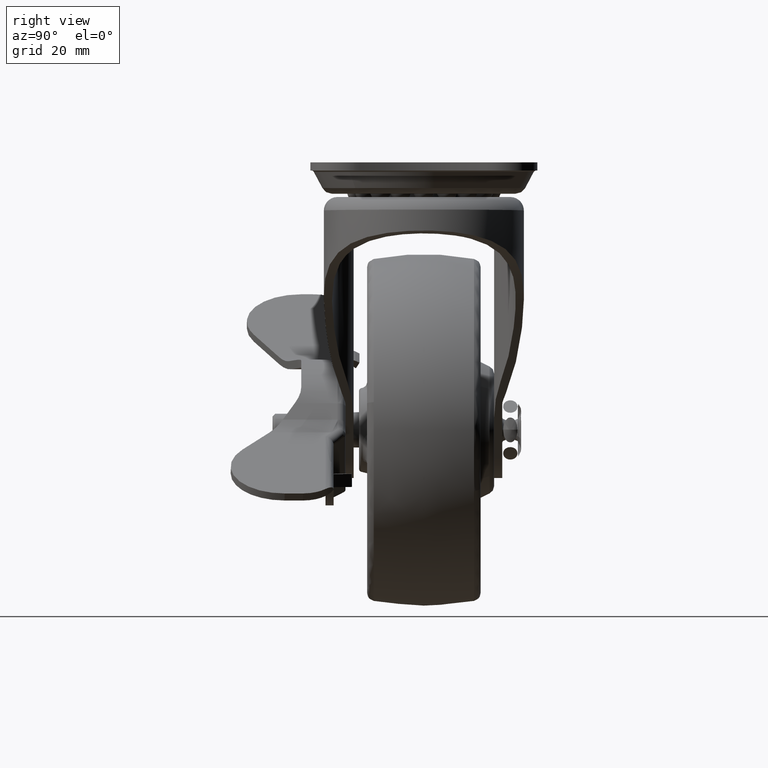
[diagram: clean part render]
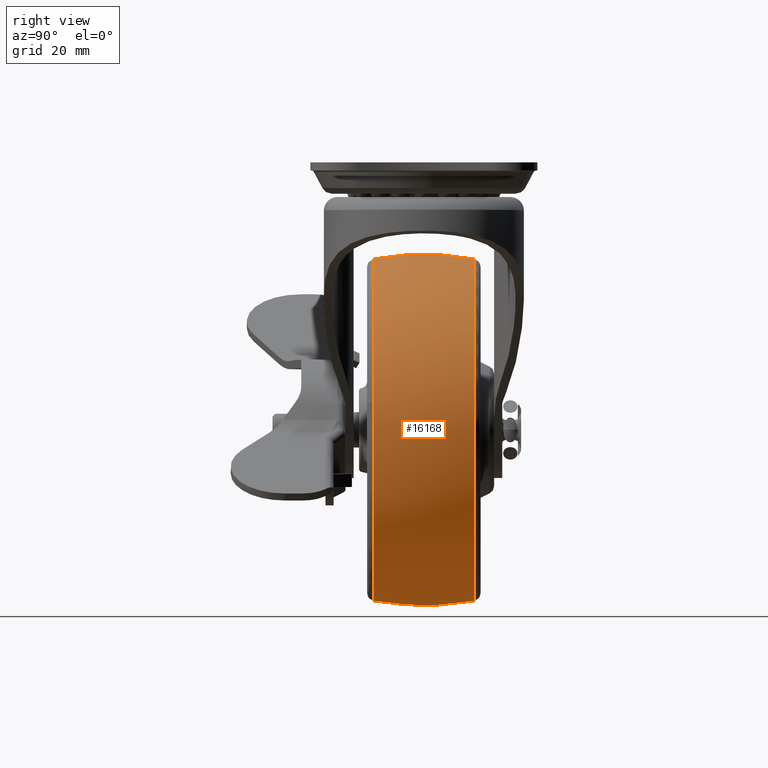
[diagram: same view with one face highlighted and labeled with its STEP entity id]
A machine part, right view. The second image highlights one B-rep face of the part: STEP entity #16168.
In plain terms, the highlighted face is a freeform B-spline surface patch.
Its self-contained STEP definition (entity closure, byte-faithful):
#14970=CARTESIAN_POINT('',(-24.0,9.278340652740681,-16.368413542973521));
#14971=VERTEX_POINT('',#14970);
#14988=CARTESIAN_POINT('',(5.559855383711903,9.278347413735352,-59.259296685674798));
#14989=VERTEX_POINT('',#14988);
#14990=CARTESIAN_POINT('',(5.559855383711903,9.278347413735352,-59.259296685674798));
#14991=CARTESIAN_POINT('',(6.183984268976650,9.278347152950920,-57.621077383336967));
#14992=CARTESIAN_POINT('',(6.937191551333012,9.278346737467379,-55.008845439949383));
#14993=CARTESIAN_POINT('',(7.530198971849602,9.278346123743855,-51.145477850854128));
#14994=CARTESIAN_POINT('',(7.722941006927616,9.278345516493785,-47.319250255242380));
#14995=CARTESIAN_POINT('',(7.380619714493645,9.278344885286099,-43.337096531868518));
#14996=CARTESIAN_POINT('',(6.483145951248871,9.278344243923007,-39.285838940578493));
#14997=CARTESIAN_POINT('',(5.327572688205906,9.278343719265529,-35.967907405329449));
#14998=CARTESIAN_POINT('',(3.736217373753648,9.278343196978169,-32.660925411302557));
#14999=CARTESIAN_POINT('',(1.960635834191641,9.278342748377956,-29.816762018267710));
#15000=CARTESIAN_POINT('',(-0.311658788984143,9.278342294518703,-26.934902095813470));
#15001=CARTESIAN_POINT('',(-3.403364936806913,9.278341804207621,-23.815744752513790));
#15002=CARTESIAN_POINT('',(-7.474805999964736,9.278341338166870,-20.840608815567439));
#15003=CARTESIAN_POINT('',(-12.065354742953200,9.278340986580746,-18.582219505581499));
#15004=CARTESIAN_POINT('',(-15.716566664052250,9.278340806451171,-17.413264217576039));
#15005=CARTESIAN_POINT('',(-19.617370299083010,9.278340681633308,-16.590698857785821));
#15006=CARTESIAN_POINT('',(-22.167225664484530,9.278340650046397,-16.368220482917589));
#15007=CARTESIAN_POINT('',(-24.0,9.278340652740681,-16.368413542973521));
#15008=B_SPLINE_CURVE_WITH_KNOTS('',3,(#14990,#14991,#14992,#14993,#14994,#14995,#14996,#14997,#14998,#14999,#15000,#15001,#15002,#15003,#15004,#15005,#15006,#15007),.UNSPECIFIED.,.F.,.U.,(4,1,1,1,1,1,1,1,1,1,1,1,1,1,1,4),(0.000000037547650,5.259231602539714,8.127915266473821,11.713801862943960,16.734012516397950,20.080830018472462,24.144804131813071,27.252555490345959,31.077416629998162,34.185178002967319,38.249126144130017,44.225585464509109,49.245808553685499,53.548857363973127,55.700373544264757,61.198655662885351),.UNSPECIFIED.);
#15009=EDGE_CURVE('',#14989,#14971,#15008,.T.);
#15064=CARTESIAN_POINT('',(-24.0,9.278350515463879,-79.631576594482993));
#15065=VERTEX_POINT('',#15064);
#15066=CARTESIAN_POINT('',(-24.0,9.278350515463879,-79.631576594482993));
#15067=CARTESIAN_POINT('',(-21.912295343940009,9.278350515502742,-79.631831697351146));
#15068=CARTESIAN_POINT('',(-18.134638776503881,9.278350458313680,-79.256212088935641));
#15069=CARTESIAN_POINT('',(-13.435536545179829,9.278350254007941,-77.914322815592627));
#15070=CARTESIAN_POINT('',(-9.327392544354604,9.278349982046249,-76.128069175274078));
#15071=CARTESIAN_POINT('',(-6.038271073671546,9.278349680407874,-74.146892429600513));
#15072=CARTESIAN_POINT('',(-2.844089639001925,9.278349293683062,-71.606871786207137));
#15073=CARTESIAN_POINT('',(-0.060401256230462,9.278348870269403,-68.825870808510814));
#15074=CARTESIAN_POINT('',(3.042882183010831,9.278348247656412,-64.736525425715911));
#15075=CARTESIAN_POINT('',(4.764022702409149,9.278347732017675,-61.349787258131009));
#15076=CARTESIAN_POINT('',(5.559855383711903,9.278347413735352,-59.259296685674798));
#15077=B_SPLINE_CURVE_WITH_KNOTS('',3,(#15066,#15067,#15068,#15069,#15070,#15071,#15072,#15073,#15074,#15075,#15076),.UNSPECIFIED.,.F.,.U.,(4,1,1,1,1,1,1,1,4),(0.000000037920429,6.263082940332545,11.333231368878391,14.613898063488580,19.683988487469549,22.815553875409801,26.841838259049869,31.464619026012731,38.175068268067399),.UNSPECIFIED.);
#15078=EDGE_CURVE('',#15065,#14989,#15077,.T.);
#15080=CARTESIAN_POINT('',(-55.420019626395813,9.278361322975613,-44.347718838754588));
#15081=VERTEX_POINT('',#15080);
#15082=CARTESIAN_POINT('',(-55.420019626395813,9.278361322975613,-44.347718838754588));
#15083=CARTESIAN_POINT('',(-55.556374417708092,9.278361143338932,-45.520668236157633));
#15084=CARTESIAN_POINT('',(-55.718365933421779,9.278360705286421,-48.229117056861767));
#15085=CARTESIAN_POINT('',(-55.445703088067262,9.278359987237682,-52.189503537649443));
#15086=CARTESIAN_POINT('',(-54.669572567834848,9.278359216804553,-56.008194058270050));
#15087=CARTESIAN_POINT('',(-53.643076906214738,9.278358517884055,-59.185328328797240));
#15088=CARTESIAN_POINT('',(-52.253006001702808,9.278357761994089,-62.372178702982467));
#15089=CARTESIAN_POINT('',(-50.235319099543730,9.278356857597434,-65.869445671355521));
#15090=CARTESIAN_POINT('',(-47.817547856986650,9.278355966568032,-68.932192633326196));
#15091=CARTESIAN_POINT('',(-45.159268437370102,9.278355109371212,-71.582725850238560));
#15092=CARTESIAN_POINT('',(-42.034289381100884,9.278354197651099,-74.136825297769548));
#15093=CARTESIAN_POINT('',(-38.010268606837613,9.278353179359320,-76.514165603536412));
#15094=CARTESIAN_POINT('',(-33.988800548137711,9.278352299402201,-78.084019374325464));
#15095=CARTESIAN_POINT('',(-29.487374168292920,9.278351409848030,-79.282651148846142));
#15096=CARTESIAN_POINT('',(-26.292305027115511,9.278350864106489,-79.632033399468000));
#15097=CARTESIAN_POINT('',(-24.0,9.278350515463879,-79.631576594482993));
#15098=B_SPLINE_CURVE_WITH_KNOTS('',3,(#15082,#15083,#15084,#15085,#15086,#15087,#15088,#15089,#15090,#15091,#15092,#15093,#15094,#15095,#15096,#15097),.UNSPECIFIED.,.F.,.U.,(4,1,1,1,1,1,1,1,1,1,1,1,1,4),(0.000000064286269,3.542555920557852,8.127105867624820,11.878105732831971,15.212321470516709,18.129757470669482,22.297509757813980,27.298765042080021,29.799459891124670,33.550430018594213,39.385315327132162,43.761480131550023,46.470531097739368,53.347307388171103),.UNSPECIFIED.);
#15099=EDGE_CURVE('',#15081,#15065,#15098,.T.);
#15147=CARTESIAN_POINT('',(-15.286248543549259,-9.278350259359307,-78.407682962569965));
#15148=VERTEX_POINT('',#15147);
#15149=CARTESIAN_POINT('',(7.210436807232209,-9.278342663000696,-42.855525262711772));
#15150=VERTEX_POINT('',#15149);
#15151=CARTESIAN_POINT('',(-15.286248543549259,-9.278350259359307,-78.407682962569965));
#15152=CARTESIAN_POINT('',(-13.212145726120511,-9.278350124064389,-77.813645428503520));
#15153=CARTESIAN_POINT('',(-9.633746539261882,-9.278349804167887,-76.378054177124170));
#15154=CARTESIAN_POINT('',(-5.363906308284211,-9.278349215354719,-73.681434656019988));
#15155=CARTESIAN_POINT('',(-2.103387843958191,-9.278348621400991,-70.936777812796976));
#15156=CARTESIAN_POINT('',(0.922541501103569,-9.278347921127860,-67.681670900068170));
#15157=CARTESIAN_POINT('',(3.385842205674261,-9.278347143426011,-64.045651038255542));
#15158=CARTESIAN_POINT('',(5.173103065267068,-9.278346362101601,-60.376603906260513));
#15159=CARTESIAN_POINT('',(6.463058435204409,-9.278345607522438,-56.822944797151273));
#15160=CARTESIAN_POINT('',(7.447316692009709,-9.278344689585751,-52.486267677486651));
#15161=CARTESIAN_POINT('',(7.758743582469232,-9.278343664349203,-47.624233384181657));
#15162=CARTESIAN_POINT('',(7.454166974950971,-9.278342973054127,-44.333814165011979));
#15163=CARTESIAN_POINT('',(7.210436807232209,-9.278342663000696,-42.855525262711772));
#15164=B_SPLINE_CURVE_WITH_KNOTS('',3,(#15151,#15152,#15153,#15154,#15155,#15156,#15157,#15158,#15159,#15160,#15161,#15162,#15163),.UNSPECIFIED.,.F.,.U.,(4,1,1,1,1,1,1,1,1,1,4),(0.000000057327533,6.472438272265066,11.506588663306690,15.102409535707309,19.237609982699290,24.811067068705711,28.227087928343519,31.463323137257650,36.137885071215742,41.531609012054993,46.026351884907157),.UNSPECIFIED.);
#15165=EDGE_CURVE('',#15148,#15150,#15164,.T.);
#15245=CARTESIAN_POINT('',(-24.0,-9.278350515463870,-79.631576594482993));
#15246=VERTEX_POINT('',#15245);
#15247=CARTESIAN_POINT('',(-24.0,-9.278350515463870,-79.631576594482993));
#15248=CARTESIAN_POINT('',(-22.574654805078541,-9.278350515477310,-79.631640872826580));
#15249=CARTESIAN_POINT('',(-19.632040725731802,-9.278350473767178,-79.432312787175263));
#15250=CARTESIAN_POINT('',(-16.744815052908489,-9.278350346840645,-78.825746188329603));
#15251=CARTESIAN_POINT('',(-15.286248543549259,-9.278350259359307,-78.407682962569965));
#15252=B_SPLINE_CURVE_WITH_KNOTS('',3,(#15247,#15248,#15249,#15250,#15251),.UNSPECIFIED.,.F.,.U.,(4,1,4),(1.821412E-009,4.276028438289386,8.827911730198334),.UNSPECIFIED.);
#15253=EDGE_CURVE('',#15246,#15148,#15252,.T.);
#15324=CARTESIAN_POINT('',(-24.0,-9.278336809609019,-16.368412817215621));
#15325=VERTEX_POINT('',#15324);
#15326=CARTESIAN_POINT('',(7.210436807232209,-9.278342663000696,-42.855525262711772));
#15327=CARTESIAN_POINT('',(6.861910390094805,-9.278342195312769,-40.739196373304942));
#15328=CARTESIAN_POINT('',(5.808150234676088,-9.278341337884871,-36.859259616660552));
#15329=CARTESIAN_POINT('',(3.558861996990044,-9.278340321215554,-32.258741254125503));
#15330=CARTESIAN_POINT('',(1.086242183659753,-9.278339513819526,-28.605203646990510));
#15331=CARTESIAN_POINT('',(-1.392412018963790,-9.278338884072545,-25.755542727847249));
#15332=CARTESIAN_POINT('',(-4.165433059003477,-9.278338337375089,-23.281688613359361));
#15333=CARTESIAN_POINT('',(-7.185852167365854,-9.278337859581963,-21.119633053457449));
#15334=CARTESIAN_POINT('',(-10.596593510965700,-9.278337444818829,-19.242792415165852));
#15335=CARTESIAN_POINT('',(-14.715600863005490,-9.278337093480770,-17.652957852330591));
#15336=CARTESIAN_POINT('',(-19.188696043081951,-9.278336863955406,-16.614334795984561));
#15337=CARTESIAN_POINT('',(-22.376902785934359,-9.278336809587561,-16.368315770221919));
#15338=CARTESIAN_POINT('',(-24.0,-9.278336809609019,-16.368412817215621));
#15339=B_SPLINE_CURVE_WITH_KNOTS('',3,(#15326,#15327,#15328,#15329,#15330,#15331,#15332,#15333,#15334,#15335,#15336,#15337,#15338),.UNSPECIFIED.,.F.,.U.,(4,1,1,1,1,1,1,1,1,1,4),(0.000000054252858,6.434439187999054,11.999371716958359,15.303564224370520,19.651149577808461,23.303124565666501,26.433387062265460,30.780986147595030,34.954692756653301,39.650122840017502,44.519405091545842),.UNSPECIFIED.);
#15340=EDGE_CURVE('',#15150,#15325,#15339,.T.);
#15342=CARTESIAN_POINT('',(-55.420022977033028,-9.278343487341120,-44.347718492499752));
#15343=VERTEX_POINT('',#15342);
#15360=CARTESIAN_POINT('',(-55.420022977033028,-9.278343487341120,-44.347718492499752));
#15361=CARTESIAN_POINT('',(-55.620639850386397,-9.278343659122536,-46.072644889177077));
#15362=CARTESIAN_POINT('',(-55.741458960682472,-9.278344049585263,-49.694956921320127));
#15363=CARTESIAN_POINT('',(-55.118343499933530,-9.278344610025920,-54.184844919942691));
#15364=CARTESIAN_POINT('',(-54.043836027022238,-9.278345148119191,-58.071613195246677));
#15365=CARTESIAN_POINT('',(-52.906316078953019,-9.278345584753941,-60.988997585380147));
#15366=CARTESIAN_POINT('',(-51.309402488732161,-9.278346085834480,-64.077399280637906));
#15367=CARTESIAN_POINT('',(-49.012472716341733,-9.278346700391131,-67.563889474702279));
#15368=CARTESIAN_POINT('',(-45.928020731416353,-9.278347385255362,-70.981964776784380));
#15369=CARTESIAN_POINT('',(-42.513785529080138,-9.278348028815765,-73.734578534715439));
#15370=CARTESIAN_POINT('',(-39.397212373970838,-9.278348555782232,-75.702743213422650));
#15371=CARTESIAN_POINT('',(-36.271294313530227,-9.278349034735696,-77.230404416161207));
#15372=CARTESIAN_POINT('',(-32.466170495925532,-9.278349560365140,-78.573384107038734));
#15373=CARTESIAN_POINT('',(-28.376136311898051,-9.278350060653640,-79.434553341746380));
#15374=CARTESIAN_POINT('',(-25.389246609171941,-9.278350378032846,-79.631613873960404));
#15375=CARTESIAN_POINT('',(-24.0,-9.278350515463870,-79.631576594482993));
#15376=B_SPLINE_CURVE_WITH_KNOTS('',3,(#15360,#15361,#15362,#15363,#15364,#15365,#15366,#15367,#15368,#15369,#15370,#15371,#15372,#15373,#15374,#15375),.UNSPECIFIED.,.F.,.U.,(4,1,1,1,1,1,1,1,1,1,1,1,1,4),(0.000000064387720,5.209663291490699,10.836162291902580,13.545216551171560,17.296202413204011,20.213631684816971,23.964655805305860,29.799461106420580,33.967221152428017,37.093038454207473,40.844037450372177,44.386638797339813,49.179559699622182,53.347309563721808),.UNSPECIFIED.);
#15377=EDGE_CURVE('',#15343,#15246,#15376,.T.);
#16088=CARTESIAN_POINT('',(-55.234897611642538,-10.215966914522928,-44.369199315051986));
#16089=CARTESIAN_POINT('',(-56.282628353075218,-5.162436085833464,-44.247409343142685));
#16090=CARTESIAN_POINT('',(-56.282628353075218,0.0,-44.247409343142699));
#16091=CARTESIAN_POINT('',(-56.282628353075218,5.162441517534351,-44.247409343142678));
#16092=CARTESIAN_POINT('',(-55.234895430139346,10.215977436584838,-44.369199568633562));
#16093=CARTESIAN_POINT('',(-55.445214474975728,-10.215966914522928,-46.178506269486320));
#16094=CARTESIAN_POINT('',(-56.499999999999993,-5.162436085833465,-46.117406956480998));
#16095=CARTESIAN_POINT('',(-56.499999999999993,0.0,-46.117406956480998));
#16096=CARTESIAN_POINT('',(-56.500000000000007,5.162441517534350,-46.117406956480998));
#16097=CARTESIAN_POINT('',(-55.445212278783607,10.215977436584838,-46.178506396702559));
#16098=CARTESIAN_POINT('',(-55.445214474975714,-10.215966914522927,-47.999996000000010));
#16099=CARTESIAN_POINT('',(-56.500000000000000,-5.162436085833466,-47.999996000000003));
#16100=CARTESIAN_POINT('',(-56.500000000000000,0.0,-47.999996000000003));
#16101=CARTESIAN_POINT('',(-56.500000000000014,5.162441517534351,-47.999996000000010));
#16102=CARTESIAN_POINT('',(-55.445212278783600,10.215977436584842,-47.999996000000010));
#16103=CARTESIAN_POINT('',(-55.445214474975714,-10.215966914522927,-79.445210474975738));
#16104=CARTESIAN_POINT('',(-56.499999999999993,-5.162436085833465,-80.499995999999982));
#16105=CARTESIAN_POINT('',(-56.500000000000000,0.0,-80.499996000000010));
#16106=CARTESIAN_POINT('',(-56.500000000000000,5.162441517534351,-80.499996000000010));
#16107=CARTESIAN_POINT('',(-55.445212278783615,10.215977436584842,-79.445208278783610));
#16108=CARTESIAN_POINT('',(-23.999999999999996,-10.215966914522927,-79.445210474975724));
#16109=CARTESIAN_POINT('',(-24.000000000000004,-5.162436085833466,-80.499996000000010));
#16110=CARTESIAN_POINT('',(-24.0,0.0,-80.499996000000010));
#16111=CARTESIAN_POINT('',(-24.0,5.162441517534351,-80.499996000000010));
#16112=CARTESIAN_POINT('',(-24.000000000000004,10.215977436584842,-79.445208278783596));
#16113=CARTESIAN_POINT('',(7.445214474975721,-10.215966914522927,-79.445210474975738));
#16114=CARTESIAN_POINT('',(8.499999999999998,-5.162436085833465,-80.499995999999982));
#16115=CARTESIAN_POINT('',(8.499999999999998,0.0,-80.499996000000010));
#16116=CARTESIAN_POINT('',(8.499999999999996,5.162441517534351,-80.499996000000010));
#16117=CARTESIAN_POINT('',(7.445212278783605,10.215977436584842,-79.445208278783610));
#16118=CARTESIAN_POINT('',(7.445214474975721,-10.215966914522927,-47.999996000000010));
#16119=CARTESIAN_POINT('',(8.500000000000000,-5.162436085833466,-47.999996000000003));
#16120=CARTESIAN_POINT('',(8.500000000000000,0.0,-47.999996000000003));
#16121=CARTESIAN_POINT('',(8.500000000000000,5.162441517534351,-47.999996000000010));
#16122=CARTESIAN_POINT('',(7.445212278783605,10.215977436584842,-47.999996000000010));
#16123=CARTESIAN_POINT('',(7.445214474975721,-10.215966914522927,-16.554781525024275));
#16124=CARTESIAN_POINT('',(8.499999999999998,-5.162436085833465,-15.499996000000005));
#16125=CARTESIAN_POINT('',(8.499999999999998,0.0,-15.499996000000012));
#16126=CARTESIAN_POINT('',(8.499999999999996,5.162441517534351,-15.499996000000012));
#16127=CARTESIAN_POINT('',(7.445212278783605,10.215977436584842,-16.554783721216403));
#16128=CARTESIAN_POINT('',(-23.999999999999996,-10.215966914522927,-16.554781525024278));
#16129=CARTESIAN_POINT('',(-24.000000000000004,-5.162436085833466,-15.499996000000003));
#16130=CARTESIAN_POINT('',(-24.0,0.0,-15.499995999999999));
#16131=CARTESIAN_POINT('',(-24.0,5.162441517534351,-15.499995999999998));
#16132=CARTESIAN_POINT('',(-24.000000000000004,10.215977436584842,-16.554783721216399));
#16140=(BOUNDED_SURFACE()B_SPLINE_SURFACE(2,2,((#16088,#16093,#16098,#16103,#16108,#16113,#16118,#16123,#16128),(#16089,#16094,#16099,#16104,#16109,#16114,#16119,#16124,#16129),(#16090,#16095,#16100,#16105,#16110,#16115,#16120,#16125,#16130),(#16091,#16096,#16101,#16106,#16111,#16116,#16121,#16126,#16131),(#16092,#16097,#16102,#16107,#16112,#16117,#16122,#16127,#16132)),.UNSPECIFIED.,.F.,.F.,.U.)B_SPLINE_SURFACE_WITH_KNOTS((3,2,3),(3,2,2,2,3),(0.0,10.546075852795500,21.092162454407291),(0.0,4.307820149998689,58.155583258501068,112.003346367003500,165.851109475505810),.UNSPECIFIED.)GEOMETRIC_REPRESENTATION_ITEM()RATIONAL_B_SPLINE_SURFACE(((0.907491729574124,0.926158145320754,0.948380067945628,0.670605977186513,0.948380067945628,0.670605977186513,0.948380067945628,0.670605977186513,0.948380067945628),(0.926934110058150,0.946000440807190,0.968698452701728,0.684973244830308,0.968698452701728,0.684973244830308,0.968698452701728,0.684973244830308,0.968698452701728),(0.956886126402807,0.976568547383107,1.0,0.707106781186548,1.0,0.707106781186548,1.0,0.707106781186548,1.0),(0.926934079530328,0.946000409651434,0.968698420798432,0.684973222271271,0.968698420798432,0.684973222271271,0.968698420798432,0.684973222271271,0.968698420798432),(0.907491689941843,0.926158104873268,0.948380026527659,0.670605947899585,0.948380026527659,0.670605947899585,0.948380026527659,0.670605947899585,0.948380026527659)))REPRESENTATION_ITEM('')SURFACE());
#16141=ORIENTED_EDGE('',*,*,#15099,.T.);
#16142=ORIENTED_EDGE('',*,*,#15078,.T.);
#16143=ORIENTED_EDGE('',*,*,#15009,.T.);
#16144=CARTESIAN_POINT('',(-24.0,-9.278336809609019,-16.368412817215621));
#16145=CARTESIAN_POINT('',(-24.000000000000071,-6.699194664446218,-15.881154550241790));
#16146=CARTESIAN_POINT('',(-23.999999999999950,-2.821292565218377,-15.461395094443120));
#16147=CARTESIAN_POINT('',(-24.000000000000039,3.404576468782151,-15.515865817907430));
#16148=CARTESIAN_POINT('',(-23.999999999999989,6.985767960392616,-15.935361624214851));
#16149=CARTESIAN_POINT('',(-24.0,9.278340652740681,-16.368413542973521));
#16150=B_SPLINE_CURVE_WITH_KNOTS('',3,(#16144,#16145,#16146,#16147,#16148,#16149),.UNSPECIFIED.,.F.,.U.,(4,1,1,4),(2.383533E-009,7.874258284436603,11.665555407859490,18.664888808777860),.UNSPECIFIED.);
#16151=EDGE_CURVE('',#15325,#14971,#16150,.T.);
#16152=ORIENTED_EDGE('',*,*,#16151,.F.);
#16153=ORIENTED_EDGE('',*,*,#15340,.F.);
#16154=ORIENTED_EDGE('',*,*,#15165,.F.);
#16155=ORIENTED_EDGE('',*,*,#15253,.F.);
#16156=ORIENTED_EDGE('',*,*,#15377,.F.);
#16157=CARTESIAN_POINT('',(-55.420022977033028,-9.278343487341120,-44.347718492499752));
#16158=CARTESIAN_POINT('',(-55.868137254218993,-6.890246273485013,-44.295628923454743));
#16159=CARTESIAN_POINT('',(-56.296442121807289,-3.113403379192359,-44.245842030538533));
#16160=CARTESIAN_POINT('',(-56.296456381326323,3.113424388853034,-44.245840358482013));
#16161=CARTESIAN_POINT('',(-55.868111050520980,6.890260857649413,-44.295631937314532));
#16162=CARTESIAN_POINT('',(-55.420019626395813,9.278361322975613,-44.347718838754588));
#16163=B_SPLINE_CURVE_WITH_KNOTS('',3,(#16157,#16158,#16159,#16160,#16161,#16162),.UNSPECIFIED.,.F.,.U.,(4,1,1,4),(2.383192E-009,7.290986241197631,11.373930401433769,18.664916640248268),.UNSPECIFIED.);
#16164=EDGE_CURVE('',#15343,#15081,#16163,.T.);
#16165=ORIENTED_EDGE('',*,*,#16164,.T.);
#16166=EDGE_LOOP('',(#16141,#16142,#16143,#16152,#16153,#16154,#16155,#16156,#16165));
#16167=FACE_OUTER_BOUND('',#16166,.T.);
#16168=ADVANCED_FACE('',(#16167),#16140,.T.);